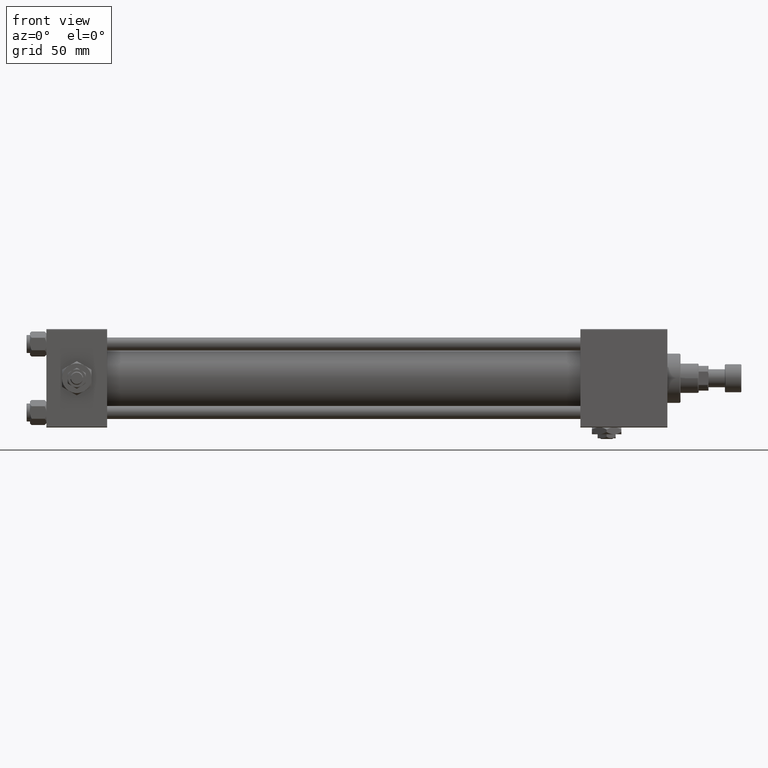
[diagram: clean part render]
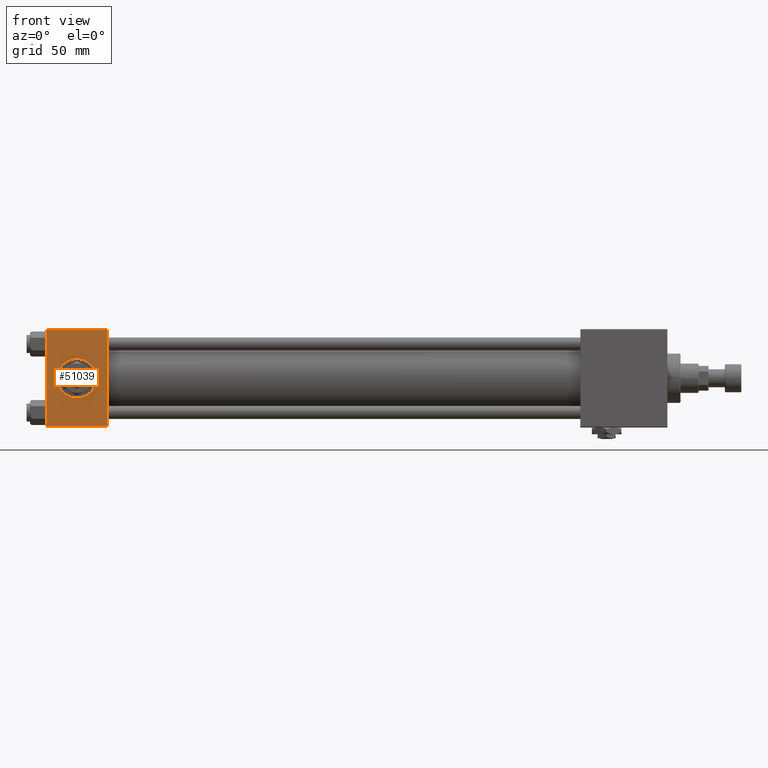
[diagram: same view with one face highlighted and labeled with its STEP entity id]
A machine part, front view. The second image highlights one B-rep face of the part: STEP entity #51039.
In plain terms, the highlighted planar face has unit normal (0, 1, 0).
Its self-contained STEP definition (entity closure, byte-faithful):
#747 = VECTOR ( 'NONE', #47689, 1000.000000000000000 ) ;
#1905 = EDGE_CURVE ( 'NONE', #17304, #31233, #11505, .T. ) ;
#5306 = VECTOR ( 'NONE', #11706, 1000.000000000000000 ) ;
#6408 = AXIS2_PLACEMENT_3D ( 'NONE', #39506, #15317, #52296 ) ;
#6903 = CARTESIAN_POINT ( 'NONE',  ( 37.00000000000000000, -30.00000000000000000, 29.49999999999999289 ) ) ;
#7194 = CARTESIAN_POINT ( 'NONE',  ( 37.00000000000000000, -30.00000000000000000, 29.99999999999999289 ) ) ;
#7512 = CARTESIAN_POINT ( 'NONE',  ( 37.00000000000000000, -30.00000000000000000, -29.50000000000001776 ) ) ;
#7953 = CARTESIAN_POINT ( 'NONE',  ( 0.000000000000000000, -30.00000000000000000, -29.50000000000001776 ) ) ;
#8016 = AXIS2_PLACEMENT_3D ( 'NONE', #25251, #36686, #40937 ) ;
#8339 = EDGE_LOOP ( 'NONE', ( #15255, #15727, #48269, #16706 ) ) ;
#10033 = VERTEX_POINT ( 'NONE', #15020 ) ;
#10678 = VECTOR ( 'NONE', #17595, 1000.000000000000000 ) ;
#11505 = LINE ( 'NONE', #7512, #747 ) ;
#11588 = FACE_BOUND ( 'NONE', #49481, .T. ) ;
#11706 = DIRECTION ( 'NONE',  ( 0.000000000000000000, 0.000000000000000000, -1.000000000000000000 ) ) ;
#11968 = LINE ( 'NONE', #7194, #5306 ) ;
#12821 = CARTESIAN_POINT ( 'NONE',  ( 37.00000000000000000, -30.00000000000000000, -29.50000000000001776 ) ) ;
#13555 = EDGE_CURVE ( 'NONE', #18826, #31233, #11968, .T. ) ;
#13558 = ORIENTED_EDGE ( 'NONE', *, *, #29519, .F. ) ;
#15020 = CARTESIAN_POINT ( 'NONE',  ( 18.50000000000000000, -30.00000000000000000, -12.00000000000000178 ) ) ;
#15255 = ORIENTED_EDGE ( 'NONE', *, *, #35398, .T. ) ;
#15317 = DIRECTION ( 'NONE',  ( -0.000000000000000000, 1.000000000000000000, 0.000000000000000000 ) ) ;
#15727 = ORIENTED_EDGE ( 'NONE', *, *, #1905, .T. ) ;
#16706 = ORIENTED_EDGE ( 'NONE', *, *, #31387, .T. ) ;
#17304 = VERTEX_POINT ( 'NONE', #7953 ) ;
#17595 = DIRECTION ( 'NONE',  ( 0.000000000000000000, 0.000000000000000000, -1.000000000000000000 ) ) ;
#18826 = VERTEX_POINT ( 'NONE', #6903 ) ;
#19668 = CARTESIAN_POINT ( 'NONE',  ( 0.000000000000000000, -30.00000000000000000, 29.49999999999999289 ) ) ;
#20474 = CARTESIAN_POINT ( 'NONE',  ( 37.00000000000000000, -30.00000000000000000, 29.49999999999999289 ) ) ;
#22211 = VERTEX_POINT ( 'NONE', #48236 ) ;
#22956 = CARTESIAN_POINT ( 'NONE',  ( 18.50000000000000000, -30.00000000000000000, 0.000000000000000000 ) ) ;
#23827 = PLANE ( 'NONE',  #6408 ) ;
#25251 = CARTESIAN_POINT ( 'NONE',  ( 18.50000000000000000, -30.00000000000000000, 0.000000000000000000 ) ) ;
#25315 = CARTESIAN_POINT ( 'NONE',  ( 0.000000000000000000, -30.00000000000000000, 29.99999999999999289 ) ) ;
#26676 = AXIS2_PLACEMENT_3D ( 'NONE', #22956, #39158, #51407 ) ;
#27955 = EDGE_CURVE ( 'NONE', #22211, #10033, #45362, .T. ) ;
#29392 = VERTEX_POINT ( 'NONE', #19668 ) ;
#29519 = EDGE_CURVE ( 'NONE', #10033, #22211, #36930, .T. ) ;
#31233 = VERTEX_POINT ( 'NONE', #12821 ) ;
#31387 = EDGE_CURVE ( 'NONE', #18826, #29392, #52401, .T. ) ;
#34434 = VECTOR ( 'NONE', #36691, 1000.000000000000000 ) ;
#35398 = EDGE_CURVE ( 'NONE', #29392, #17304, #50588, .T. ) ;
#36686 = DIRECTION ( 'NONE',  ( 0.000000000000000000, -1.000000000000000000, -8.673617379884036705E-17 ) ) ;
#36691 = DIRECTION ( 'NONE',  ( -1.000000000000000000, 0.000000000000000000, 0.000000000000000000 ) ) ;
#36930 = CIRCLE ( 'NONE', #8016, 12.00000000000000178 ) ;
#39158 = DIRECTION ( 'NONE',  ( 0.000000000000000000, -1.000000000000000000, -8.673617379884036705E-17 ) ) ;
#39506 = CARTESIAN_POINT ( 'NONE',  ( 37.00000000000000000, -30.00000000000000000, 29.99999999999999289 ) ) ;
#40937 = DIRECTION ( 'NONE',  ( 0.000000000000000000, 0.000000000000000000, -1.000000000000000000 ) ) ;
#41303 = ORIENTED_EDGE ( 'NONE', *, *, #27955, .F. ) ;
#45362 = CIRCLE ( 'NONE', #26676, 12.00000000000000178 ) ;
#47689 = DIRECTION ( 'NONE',  ( 1.000000000000000000, 0.000000000000000000, 0.000000000000000000 ) ) ;
#48236 = CARTESIAN_POINT ( 'NONE',  ( 18.50000000000000000, -30.00000000000000000, 12.00000000000000178 ) ) ;
#48269 = ORIENTED_EDGE ( 'NONE', *, *, #13555, .F. ) ;
#49481 = EDGE_LOOP ( 'NONE', ( #13558, #41303 ) ) ;
#50588 = LINE ( 'NONE', #25315, #10678 ) ;
#51039 = ADVANCED_FACE ( 'NONE', ( #11588, #51766 ), #23827, .F. ) ;
#51407 = DIRECTION ( 'NONE',  ( 0.000000000000000000, 0.000000000000000000, -1.000000000000000000 ) ) ;
#51766 = FACE_OUTER_BOUND ( 'NONE', #8339, .T. ) ;
#52296 = DIRECTION ( 'NONE',  ( 0.000000000000000000, -0.000000000000000000, 1.000000000000000000 ) ) ;
#52401 = LINE ( 'NONE', #20474, #34434 ) ;